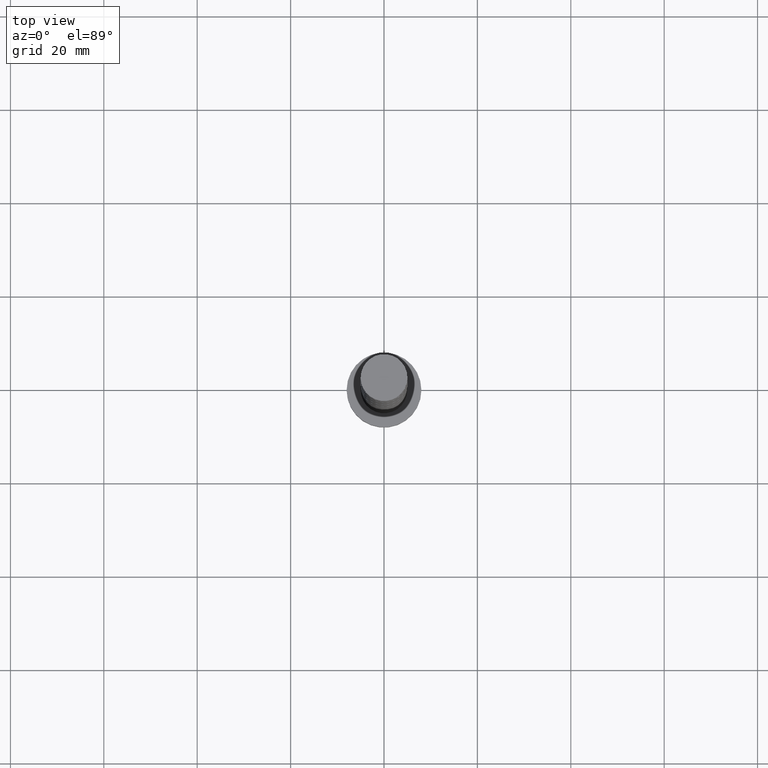
[diagram: clean part render]
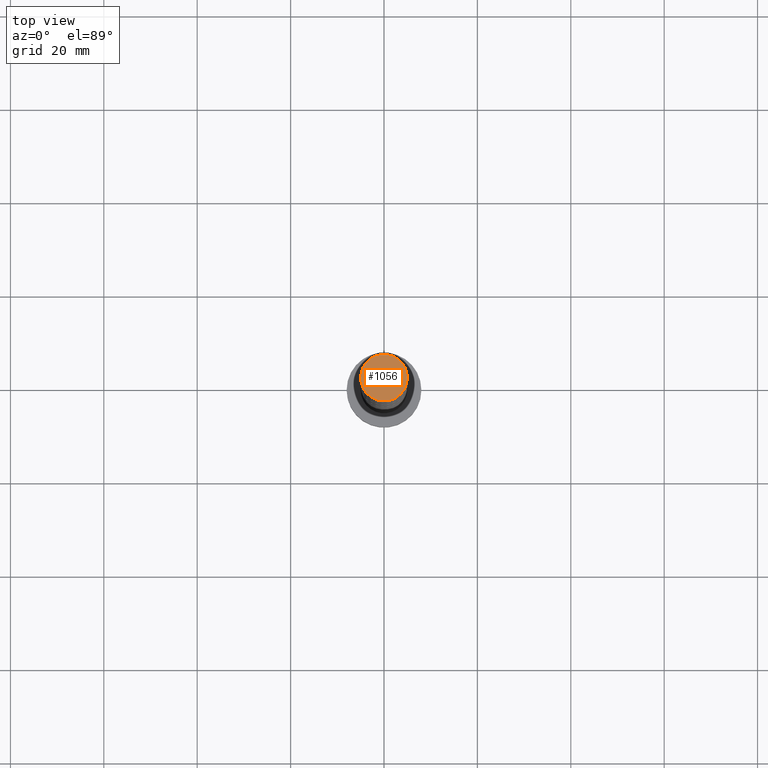
[diagram: same view with one face highlighted and labeled with its STEP entity id]
A machine part, top view. The second image highlights one B-rep face of the part: STEP entity #1056.
In plain terms, the highlighted planar face has unit normal (0, 0, 1).
Its self-contained STEP definition (entity closure, byte-faithful):
#4 = VERTEX_POINT ( 'NONE', #12 ) ;
#12 = CARTESIAN_POINT ( 'NONE',  ( 5.000000000000000000, 6.123233995736766282E-16, 155.0000000000000000 ) ) ;
#77 = AXIS2_PLACEMENT_3D ( 'NONE', #93, #988, #1517 ) ;
#89 = EDGE_CURVE ( 'NONE', #469, #4, #525, .T. ) ;
#93 = CARTESIAN_POINT ( 'NONE',  ( 0.000000000000000000, 0.000000000000000000, 155.0000000000000000 ) ) ;
#255 = EDGE_LOOP ( 'NONE', ( #397, #1431 ) ) ;
#380 = CARTESIAN_POINT ( 'NONE',  ( 0.000000000000000000, 0.000000000000000000, 155.0000000000000000 ) ) ;
#397 = ORIENTED_EDGE ( 'NONE', *, *, #89, .T. ) ;
#441 = CARTESIAN_POINT ( 'NONE',  ( -5.000000000000000000, 0.000000000000000000, 155.0000000000000000 ) ) ;
#469 = VERTEX_POINT ( 'NONE', #441 ) ;
#482 = CIRCLE ( 'NONE', #1179, 5.000000000000000000 ) ;
#505 = DIRECTION ( 'NONE',  ( 0.000000000000000000, 0.000000000000000000, 1.000000000000000000 ) ) ;
#516 = CARTESIAN_POINT ( 'NONE',  ( 0.000000000000000000, 0.000000000000000000, 155.0000000000000000 ) ) ;
#525 = CIRCLE ( 'NONE', #1384, 5.000000000000000000 ) ;
#664 = DIRECTION ( 'NONE',  ( 0.000000000000000000, 0.000000000000000000, 1.000000000000000000 ) ) ;
#738 = EDGE_CURVE ( 'NONE', #4, #469, #482, .T. ) ;
#909 = DIRECTION ( 'NONE',  ( 1.000000000000000000, 0.000000000000000000, 0.000000000000000000 ) ) ;
#988 = DIRECTION ( 'NONE',  ( 0.000000000000000000, 0.000000000000000000, 1.000000000000000000 ) ) ;
#1001 = FACE_OUTER_BOUND ( 'NONE', #255, .T. ) ;
#1056 = ADVANCED_FACE ( 'NONE', ( #1001 ), #1118, .T. ) ;
#1118 = PLANE ( 'NONE',  #77 ) ;
#1179 = AXIS2_PLACEMENT_3D ( 'NONE', #516, #664, #909 ) ;
#1384 = AXIS2_PLACEMENT_3D ( 'NONE', #380, #505, #1540 ) ;
#1431 = ORIENTED_EDGE ( 'NONE', *, *, #738, .T. ) ;
#1517 = DIRECTION ( 'NONE',  ( 1.000000000000000000, 0.000000000000000000, -0.000000000000000000 ) ) ;
#1540 = DIRECTION ( 'NONE',  ( 1.000000000000000000, 0.000000000000000000, 0.000000000000000000 ) ) ;